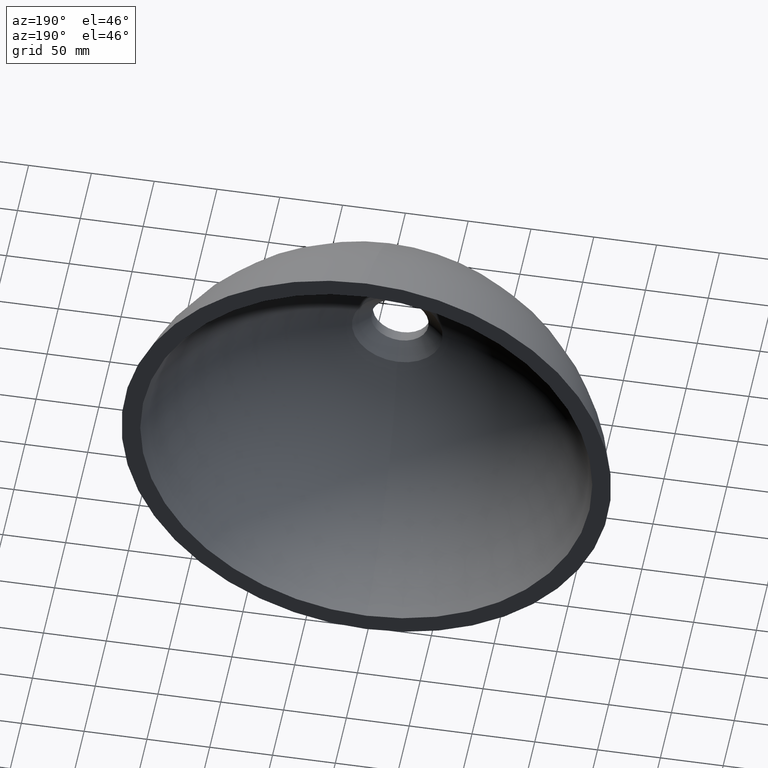
[diagram: clean part render]
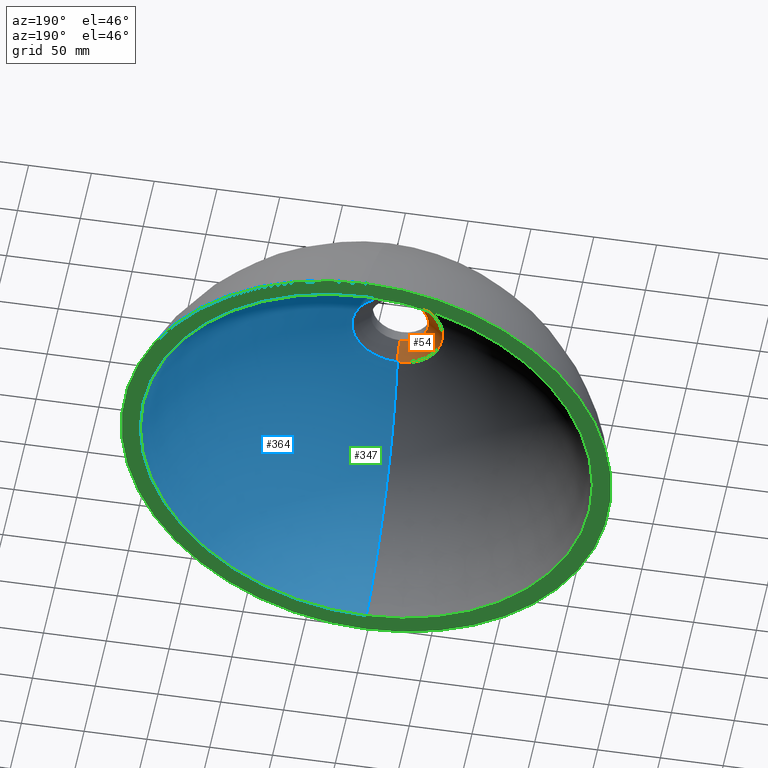
[diagram: same view with three faces highlighted in distinct colors, each labeled with its STEP entity id]
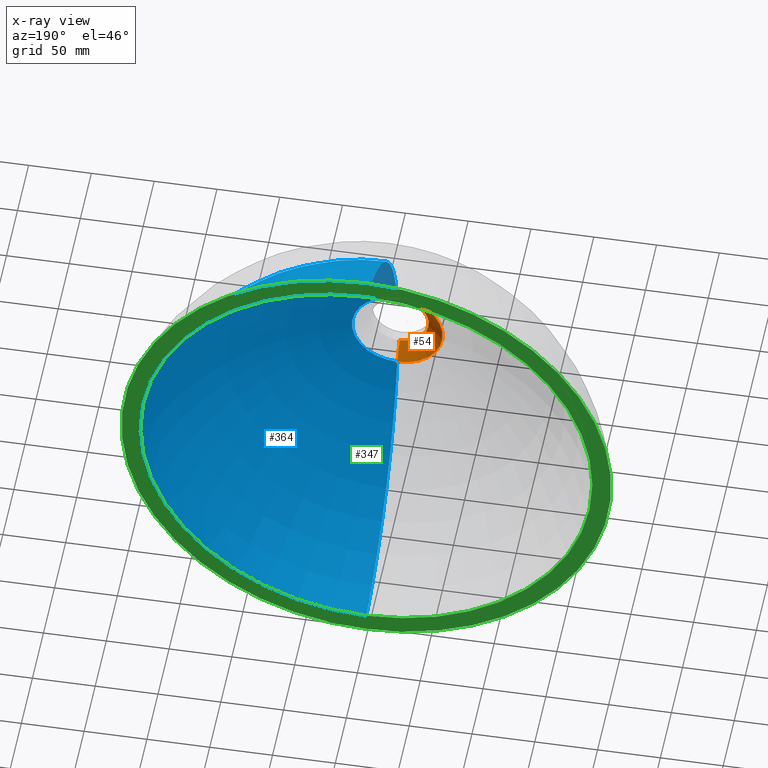
[diagram: x-ray of the same camera — body ghosted, the three highlighted faces saturated]
A machine part, auxiliary view with three faces highlighted in distinct colors.
The next image is the same camera in x-ray (body ghosted, the three faces saturated) — at least one of them is partly hidden behind the body in this view.
Their STEP definitions:

[orange] entity #54 — the highlighted conical surface has half-angle 50 deg.
#3 = DIRECTION ( 'NONE',  ( 0.0000000000000000000, 0.0000000000000000000, -1.000000000000000000 ) ) ;
#17 = CONICAL_SURFACE ( 'NONE', #432, 23.00000000000000000, 0.8726646259971667700 ) ;
#26 = ORIENTED_EDGE ( 'NONE', *, *, #206, .T. ) ;
#46 = AXIS2_PLACEMENT_3D ( 'NONE', #108, #170, #3 ) ;
#54 = ADVANCED_FACE ( 'NONE', ( #95 ), #17, .F. ) ;
#63 = VECTOR ( 'NONE', #215, 1000.000000000000000 ) ;
#64 = EDGE_CURVE ( 'NONE', #83, #239, #149, .T. ) ;
#82 = VERTEX_POINT ( 'NONE', #417 ) ;
#83 = VERTEX_POINT ( 'NONE', #151 ) ;
#95 = FACE_OUTER_BOUND ( 'NONE', #374, .T. ) ;
#108 = CARTESIAN_POINT ( 'NONE',  ( 0.0000000000000000000, 20.00000000000000000, 0.0000000000000000000 ) ) ;
#112 = ORIENTED_EDGE ( 'NONE', *, *, #64, .F. ) ;
#119 = DIRECTION ( 'NONE',  ( 0.0000000000000000000, 0.0000000000000000000, 1.000000000000000000 ) ) ;
#149 = CIRCLE ( 'NONE', #46, 36.10928951853636400 ) ;
#151 = CARTESIAN_POINT ( 'NONE',  ( 1.323287748374420900E-014, 20.00000000000000000, 36.10928951853636400 ) ) ;
#170 = DIRECTION ( 'NONE',  ( -0.0000000000000000000, -1.000000000000000000, -0.0000000000000000000 ) ) ;
#204 = LINE ( 'NONE', #302, #292 ) ;
#206 = EDGE_CURVE ( 'NONE', #375, #82, #288, .T. ) ;
#215 = DIRECTION ( 'NONE',  ( 9.381338752702746800E-017, 0.6427876096865378100, -0.7660444431189793500 ) ) ;
#224 = AXIS2_PLACEMENT_3D ( 'NONE', #391, #435, #342 ) ;
#239 = VERTEX_POINT ( 'NONE', #384 ) ;
#244 = DIRECTION ( 'NONE',  ( 0.0000000000000000000, 0.6427876096865378100, 0.7660444431189793500 ) ) ;
#279 = LINE ( 'NONE', #430, #63 ) ;
#288 = CIRCLE ( 'NONE', #224, 23.00000000000000000 ) ;
#292 = VECTOR ( 'NONE', #244, 1000.000000000000000 ) ;
#302 = CARTESIAN_POINT ( 'NONE',  ( 0.0000000000000000000, 9.000000000000001800, 23.00000000000000000 ) ) ;
#342 = DIRECTION ( 'NONE',  ( 0.0000000000000000000, 0.0000000000000000000, -1.000000000000000000 ) ) ;
#345 = EDGE_CURVE ( 'NONE', #375, #83, #204, .T. ) ;
#357 = DIRECTION ( 'NONE',  ( 0.0000000000000000000, 1.000000000000000000, 0.0000000000000000000 ) ) ;
#367 = CARTESIAN_POINT ( 'NONE',  ( 0.0000000000000000000, 9.000000000000001800, 0.0000000000000000000 ) ) ;
#374 = EDGE_LOOP ( 'NONE', ( #26, #398, #112, #395 ) ) ;
#375 = VERTEX_POINT ( 'NONE', #414 ) ;
#384 = CARTESIAN_POINT ( 'NONE',  ( 0.0000000000000000000, 20.00000000000000000, -36.10928951853636400 ) ) ;
#391 = CARTESIAN_POINT ( 'NONE',  ( 0.0000000000000000000, 9.000000000000001800, 0.0000000000000000000 ) ) ;
#395 = ORIENTED_EDGE ( 'NONE', *, *, #345, .F. ) ;
#396 = EDGE_CURVE ( 'NONE', #82, #239, #279, .T. ) ;
#398 = ORIENTED_EDGE ( 'NONE', *, *, #396, .T. ) ;
#414 = CARTESIAN_POINT ( 'NONE',  ( 2.816687638038912400E-015, 9.000000000000001800, 23.00000000000000000 ) ) ;
#417 = CARTESIAN_POINT ( 'NONE',  ( 0.0000000000000000000, 9.000000000000001800, -23.00000000000000000 ) ) ;
#430 = CARTESIAN_POINT ( 'NONE',  ( 2.816687638038912400E-015, 9.000000000000001800, -23.00000000000000000 ) ) ;
#432 = AXIS2_PLACEMENT_3D ( 'NONE', #367, #357, #119 ) ;
#435 = DIRECTION ( 'NONE',  ( -0.0000000000000000000, -1.000000000000000000, -0.0000000000000000000 ) ) ;

[blue] entity #364 — the highlighted toroidal blend (fillet) surface has major radius 6.4484 mm and minor (blend) radius 192.45 mm.
#24 = ORIENTED_EDGE ( 'NONE', *, *, #407, .F. ) ;
#51 = EDGE_CURVE ( 'NONE', #239, #83, #263, .T. ) ;
#52 = EDGE_LOOP ( 'NONE', ( #24, #187, #409, #255 ) ) ;
#59 = CIRCLE ( 'NONE', #270, 192.4496681498263800 ) ;
#60 = DIRECTION ( 'NONE',  ( -1.000000000000000000, 0.0000000000000000000, 0.0000000000000000000 ) ) ;
#68 = VERTEX_POINT ( 'NONE', #185 ) ;
#83 = VERTEX_POINT ( 'NONE', #151 ) ;
#101 = CARTESIAN_POINT ( 'NONE',  ( 2.204364238465235800E-014, 160.0000000000000000, 180.0000000000000000 ) ) ;
#103 = CARTESIAN_POINT ( 'NONE',  ( -7.896994265268598000E-016, 207.6851594974558900, -6.448385175845634100 ) ) ;
#104 = AXIS2_PLACEMENT_3D ( 'NONE', #199, #60, #131 ) ;
#107 = VERTEX_POINT ( 'NONE', #101 ) ;
#115 = DIRECTION ( 'NONE',  ( 0.0000000000000000000, 0.0000000000000000000, -1.000000000000000000 ) ) ;
#120 = CARTESIAN_POINT ( 'NONE',  ( 0.0000000000000000000, 160.0000000000000000, 0.0000000000000000000 ) ) ;
#125 = DIRECTION ( 'NONE',  ( -0.0000000000000000000, -1.000000000000000000, -0.0000000000000000000 ) ) ;
#131 = DIRECTION ( 'NONE',  ( 0.0000000000000000000, 0.0000000000000000000, 1.000000000000000000 ) ) ;
#132 = CARTESIAN_POINT ( 'NONE',  ( 0.0000000000000000000, 20.00000000000000000, 0.0000000000000000000 ) ) ;
#145 = DIRECTION ( 'NONE',  ( -0.0000000000000000000, -1.000000000000000000, -0.0000000000000000000 ) ) ;
#151 = CARTESIAN_POINT ( 'NONE',  ( 1.323287748374420900E-014, 20.00000000000000000, 36.10928951853636400 ) ) ;
#185 = CARTESIAN_POINT ( 'NONE',  ( 0.0000000000000000000, 160.0000000000000000, -180.0000000000000000 ) ) ;
#187 = ORIENTED_EDGE ( 'NONE', *, *, #258, .F. ) ;
#188 = AXIS2_PLACEMENT_3D ( 'NONE', #120, #125, #291 ) ;
#189 = CIRCLE ( 'NONE', #104, 192.4496681498263800 ) ;
#199 = CARTESIAN_POINT ( 'NONE',  ( 0.0000000000000000000, 207.6851594974558900, 6.448385175845634100 ) ) ;
#210 = CIRCLE ( 'NONE', #188, 180.0000000000000000 ) ;
#234 = DIRECTION ( 'NONE',  ( -0.0000000000000000000, -1.000000000000000000, -0.0000000000000000000 ) ) ;
#239 = VERTEX_POINT ( 'NONE', #384 ) ;
#255 = ORIENTED_EDGE ( 'NONE', *, *, #51, .T. ) ;
#258 = EDGE_CURVE ( 'NONE', #68, #107, #210, .T. ) ;
#263 = CIRCLE ( 'NONE', #290, 36.10928951853636400 ) ;
#270 = AXIS2_PLACEMENT_3D ( 'NONE', #103, #410, #379 ) ;
#290 = AXIS2_PLACEMENT_3D ( 'NONE', #132, #234, #316 ) ;
#291 = DIRECTION ( 'NONE',  ( 0.0000000000000000000, 0.0000000000000000000, -1.000000000000000000 ) ) ;
#307 = EDGE_CURVE ( 'NONE', #68, #239, #189, .T. ) ;
#310 = FACE_OUTER_BOUND ( 'NONE', #52, .T. ) ;
#316 = DIRECTION ( 'NONE',  ( 0.0000000000000000000, 0.0000000000000000000, -1.000000000000000000 ) ) ;
#335 = CARTESIAN_POINT ( 'NONE',  ( 0.0000000000000000000, 207.6851594974558900, 0.0000000000000000000 ) ) ;
#361 = TOROIDAL_SURFACE ( 'NONE', #424, -6.448385175845634100, 192.4496681498263800 ) ;
#364 = ADVANCED_FACE ( 'NONE', ( #310 ), #361, .F. ) ;
#379 = DIRECTION ( 'NONE',  ( -1.224646799147353200E-016, 0.0000000000000000000, -1.000000000000000000 ) ) ;
#384 = CARTESIAN_POINT ( 'NONE',  ( 0.0000000000000000000, 20.00000000000000000, -36.10928951853636400 ) ) ;
#407 = EDGE_CURVE ( 'NONE', #107, #83, #59, .T. ) ;
#409 = ORIENTED_EDGE ( 'NONE', *, *, #307, .T. ) ;
#410 = DIRECTION ( 'NONE',  ( 1.000000000000000000, 0.0000000000000000000, -1.224646799147353200E-016 ) ) ;
#424 = AXIS2_PLACEMENT_3D ( 'NONE', #335, #145, #115 ) ;

[green] entity #347 — the highlighted planar face has unit normal (0, -1, -0).
#12 = PLANE ( 'NONE',  #175 ) ;
#16 = DIRECTION ( 'NONE',  ( 0.0000000000000000000, 0.0000000000000000000, -1.000000000000000000 ) ) ;
#20 = AXIS2_PLACEMENT_3D ( 'NONE', #176, #249, #177 ) ;
#25 = VERTEX_POINT ( 'NONE', #137 ) ;
#43 = FACE_BOUND ( 'NONE', #129, .T. ) ;
#47 = DIRECTION ( 'NONE',  ( -0.0000000000000000000, -1.000000000000000000, -0.0000000000000000000 ) ) ;
#50 = CARTESIAN_POINT ( 'NONE',  ( 0.0000000000000000000, 160.0000000000000000, 0.0000000000000000000 ) ) ;
#68 = VERTEX_POINT ( 'NONE', #185 ) ;
#93 = ORIENTED_EDGE ( 'NONE', *, *, #258, .T. ) ;
#101 = CARTESIAN_POINT ( 'NONE',  ( 2.204364238465235800E-014, 160.0000000000000000, 180.0000000000000000 ) ) ;
#107 = VERTEX_POINT ( 'NONE', #101 ) ;
#120 = CARTESIAN_POINT ( 'NONE',  ( 0.0000000000000000000, 160.0000000000000000, 0.0000000000000000000 ) ) ;
#125 = DIRECTION ( 'NONE',  ( -0.0000000000000000000, -1.000000000000000000, -0.0000000000000000000 ) ) ;
#126 = CARTESIAN_POINT ( 'NONE',  ( -195.0000000000000000, 160.0000000000000000, 0.0000000000000000000 ) ) ;
#128 = DIRECTION ( 'NONE',  ( 0.0000000000000000000, 0.0000000000000000000, -1.000000000000000000 ) ) ;
#129 = EDGE_LOOP ( 'NONE', ( #93, #231 ) ) ;
#137 = CARTESIAN_POINT ( 'NONE',  ( 0.0000000000000000000, 160.0000000000000000, -195.0000000000000000 ) ) ;
#161 = DIRECTION ( 'NONE',  ( 0.0000000000000000000, 0.0000000000000000000, -1.000000000000000000 ) ) ;
#167 = AXIS2_PLACEMENT_3D ( 'NONE', #50, #47, #128 ) ;
#169 = CARTESIAN_POINT ( 'NONE',  ( 0.0000000000000000000, 160.0000000000000000, 0.0000000000000000000 ) ) ;
#175 = AXIS2_PLACEMENT_3D ( 'NONE', #126, #348, #161 ) ;
#176 = CARTESIAN_POINT ( 'NONE',  ( 0.0000000000000000000, 160.0000000000000000, 0.0000000000000000000 ) ) ;
#177 = DIRECTION ( 'NONE',  ( 0.0000000000000000000, 0.0000000000000000000, -1.000000000000000000 ) ) ;
#180 = CARTESIAN_POINT ( 'NONE',  ( 2.388061258337338900E-014, 160.0000000000000000, 195.0000000000000000 ) ) ;
#185 = CARTESIAN_POINT ( 'NONE',  ( 0.0000000000000000000, 160.0000000000000000, -180.0000000000000000 ) ) ;
#188 = AXIS2_PLACEMENT_3D ( 'NONE', #120, #125, #291 ) ;
#193 = CIRCLE ( 'NONE', #20, 195.0000000000000000 ) ;
#198 = CIRCLE ( 'NONE', #227, 195.0000000000000000 ) ;
#210 = CIRCLE ( 'NONE', #188, 180.0000000000000000 ) ;
#227 = AXIS2_PLACEMENT_3D ( 'NONE', #169, #351, #16 ) ;
#231 = ORIENTED_EDGE ( 'NONE', *, *, #266, .T. ) ;
#237 = VERTEX_POINT ( 'NONE', #180 ) ;
#242 = EDGE_CURVE ( 'NONE', #25, #237, #198, .T. ) ;
#249 = DIRECTION ( 'NONE',  ( -0.0000000000000000000, -1.000000000000000000, -0.0000000000000000000 ) ) ;
#258 = EDGE_CURVE ( 'NONE', #68, #107, #210, .T. ) ;
#266 = EDGE_CURVE ( 'NONE', #107, #68, #419, .T. ) ;
#278 = ORIENTED_EDGE ( 'NONE', *, *, #242, .F. ) ;
#291 = DIRECTION ( 'NONE',  ( 0.0000000000000000000, 0.0000000000000000000, -1.000000000000000000 ) ) ;
#299 = ORIENTED_EDGE ( 'NONE', *, *, #326, .F. ) ;
#326 = EDGE_CURVE ( 'NONE', #237, #25, #193, .T. ) ;
#347 = ADVANCED_FACE ( 'NONE', ( #399, #43 ), #12, .F. ) ;
#348 = DIRECTION ( 'NONE',  ( 0.0000000000000000000, -1.000000000000000000, -0.0000000000000000000 ) ) ;
#351 = DIRECTION ( 'NONE',  ( -0.0000000000000000000, -1.000000000000000000, -0.0000000000000000000 ) ) ;
#399 = FACE_OUTER_BOUND ( 'NONE', #403, .T. ) ;
#403 = EDGE_LOOP ( 'NONE', ( #278, #299 ) ) ;
#419 = CIRCLE ( 'NONE', #167, 180.0000000000000000 ) ;